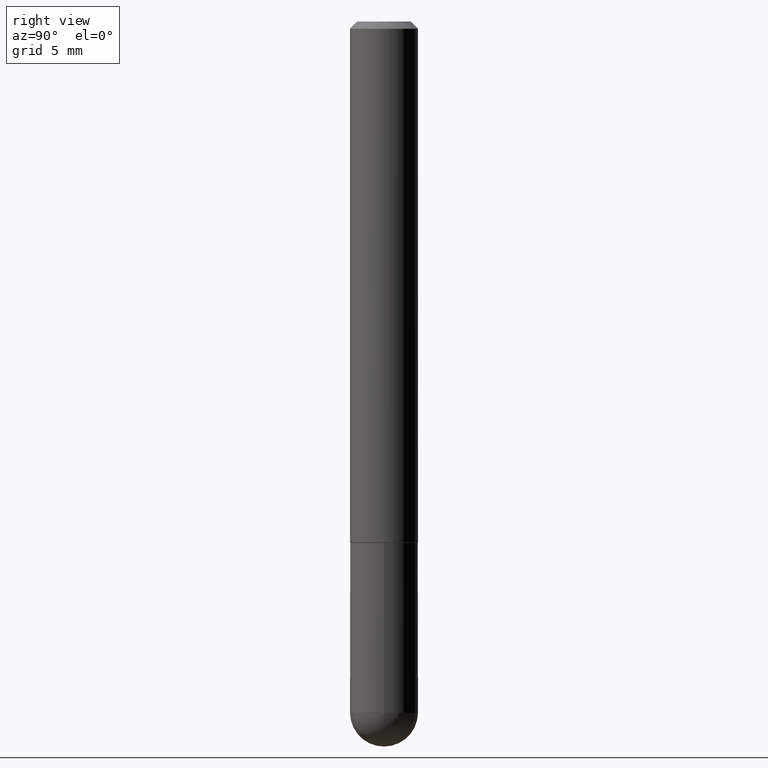
[diagram: clean part render]
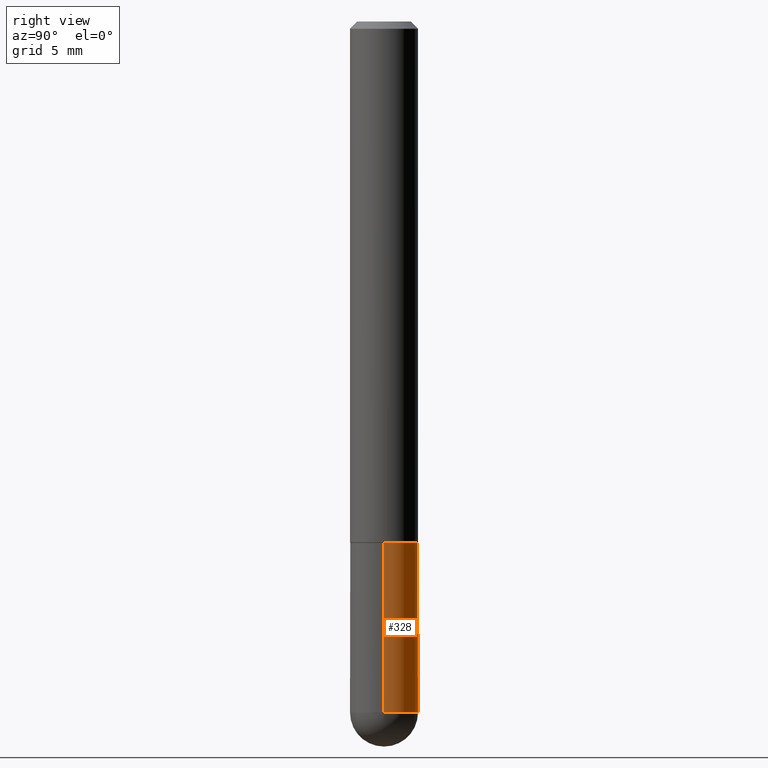
[diagram: same view with one face highlighted and labeled with its STEP entity id]
A machine part, right view. The second image highlights one B-rep face of the part: STEP entity #328.
In plain terms, the highlighted cylindrical surface (edge-blend (fillet) strip) has radius 2.3812 mm, axis along (-0, 0, 1).
Its self-contained STEP definition (entity closure, byte-faithful):
#31 = CARTESIAN_POINT ( 'NONE',  ( -0.09375000000000001388, -5.172059418938000719E-15, -1.437999999999999723 ) ) ;
#42 = AXIS2_PLACEMENT_3D ( 'NONE', #281, #314, #124 ) ;
#70 = VECTOR ( 'NONE', #87, 39.37007874015748143 ) ;
#85 = CARTESIAN_POINT ( 'NONE',  ( 3.516584143294225538E-29, -5.020750165256442268E-15, -1.437999999999999723 ) ) ;
#86 = VECTOR ( 'NONE', #378, 39.37007874015748143 ) ;
#87 = DIRECTION ( 'NONE',  ( -2.445468806185136877E-29, 3.491481338843145188E-15, 1.000000000000000000 ) ) ;
#95 = AXIS2_PLACEMENT_3D ( 'NONE', #85, #148, #299 ) ;
#106 = CARTESIAN_POINT ( 'NONE',  ( 0.09374999999999998612, -6.492845984746181359E-15, -1.906250000000000000 ) ) ;
#111 = CARTESIAN_POINT ( 'NONE',  ( -0.09374999999999998612, -5.172059418938000719E-15, -1.906250000000000000 ) ) ;
#112 = AXIS2_PLACEMENT_3D ( 'NONE', #144, #146, #208 ) ;
#114 = CARTESIAN_POINT ( 'NONE',  ( -0.09374999999999998612, 6.661338147750938256E-16, -4.611501647113973295E-30 ) ) ;
#124 = DIRECTION ( 'NONE',  ( 1.000000000000000000, -6.982962677686263555E-15, 0.000000000000000000 ) ) ;
#132 = AXIS2_PLACEMENT_3D ( 'NONE', #225, #196, #286 ) ;
#137 = EDGE_CURVE ( 'NONE', #392, #412, #291, .T. ) ;
#144 = CARTESIAN_POINT ( 'NONE',  ( 4.661674911790416638E-29, -6.655636302169745441E-15, -1.906250000000000000 ) ) ;
#146 = DIRECTION ( 'NONE',  ( -2.445468806185136597E-29, 3.491481338843145583E-15, 1.000000000000000000 ) ) ;
#148 = DIRECTION ( 'NONE',  ( -2.445468806185136597E-29, 3.491481338843145583E-15, 1.000000000000000000 ) ) ;
#150 = ORIENTED_EDGE ( 'NONE', *, *, #168, .T. ) ;
#155 = CARTESIAN_POINT ( 'NONE',  ( 0.09375000000000001388, -5.675402916289529772E-15, -1.437999999999999723 ) ) ;
#162 = CIRCLE ( 'NONE', #95, 0.09375000000000001388 ) ;
#164 = CYLINDRICAL_SURFACE ( 'NONE', #132, 0.09374999999999998612 ) ;
#168 = EDGE_CURVE ( 'NONE', #412, #276, #176, .T. ) ;
#176 = LINE ( 'NONE', #114, #70 ) ;
#182 = ORIENTED_EDGE ( 'NONE', *, *, #408, .F. ) ;
#196 = DIRECTION ( 'NONE',  ( -2.445468806185136597E-29, 3.491481338843145583E-15, 1.000000000000000000 ) ) ;
#198 = EDGE_CURVE ( 'NONE', #366, #224, #269, .T. ) ;
#208 = DIRECTION ( 'NONE',  ( 1.000000000000000000, -6.982962677686263555E-15, 0.000000000000000000 ) ) ;
#224 = VERTEX_POINT ( 'NONE', #155 ) ;
#225 = CARTESIAN_POINT ( 'NONE',  ( 0.000000000000000000, 0.000000000000000000, 0.000000000000000000 ) ) ;
#232 = CARTESIAN_POINT ( 'NONE',  ( 6.546527510331332580E-16, 0.09374999999999322764, -1.906250000000000222 ) ) ;
#269 = LINE ( 'NONE', #381, #86 ) ;
#276 = VERTEX_POINT ( 'NONE', #31 ) ;
#281 = CARTESIAN_POINT ( 'NONE',  ( 4.661674911790416638E-29, -6.655636302169745441E-15, -1.906250000000000000 ) ) ;
#283 = EDGE_CURVE ( 'NONE', #366, #392, #363, .T. ) ;
#286 = DIRECTION ( 'NONE',  ( 1.000000000000000000, -6.982962677686266711E-15, 4.876176775795935793E-29 ) ) ;
#291 = CIRCLE ( 'NONE', #112, 0.09374999999999998612 ) ;
#293 = ORIENTED_EDGE ( 'NONE', *, *, #198, .F. ) ;
#299 = DIRECTION ( 'NONE',  ( 1.000000000000000000, -6.982962677686261189E-15, 0.000000000000000000 ) ) ;
#314 = DIRECTION ( 'NONE',  ( -2.445468806185136597E-29, 3.491481338843145583E-15, 1.000000000000000000 ) ) ;
#328 = ADVANCED_FACE ( 'NONE', ( #342 ), #164, .T. ) ;
#340 = ORIENTED_EDGE ( 'NONE', *, *, #283, .T. ) ;
#342 = FACE_OUTER_BOUND ( 'NONE', #399, .T. ) ;
#363 = CIRCLE ( 'NONE', #42, 0.09374999999999998612 ) ;
#366 = VERTEX_POINT ( 'NONE', #106 ) ;
#378 = DIRECTION ( 'NONE',  ( -2.445468806185136877E-29, 3.491481338843145188E-15, 1.000000000000000000 ) ) ;
#381 = CARTESIAN_POINT ( 'NONE',  ( 0.09374999999999998612, -6.546527510330874055E-16, 4.571415727308689105E-30 ) ) ;
#392 = VERTEX_POINT ( 'NONE', #232 ) ;
#395 = ORIENTED_EDGE ( 'NONE', *, *, #137, .T. ) ;
#399 = EDGE_LOOP ( 'NONE', ( #395, #150, #182, #293, #340 ) ) ;
#408 = EDGE_CURVE ( 'NONE', #224, #276, #162, .T. ) ;
#412 = VERTEX_POINT ( 'NONE', #111 ) ;